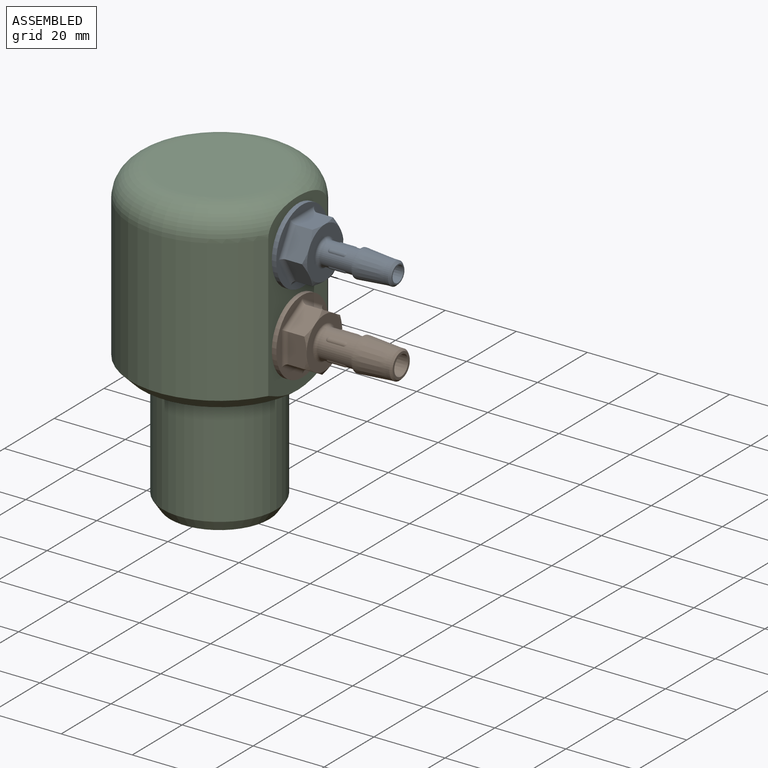
[diagram: assembled view]
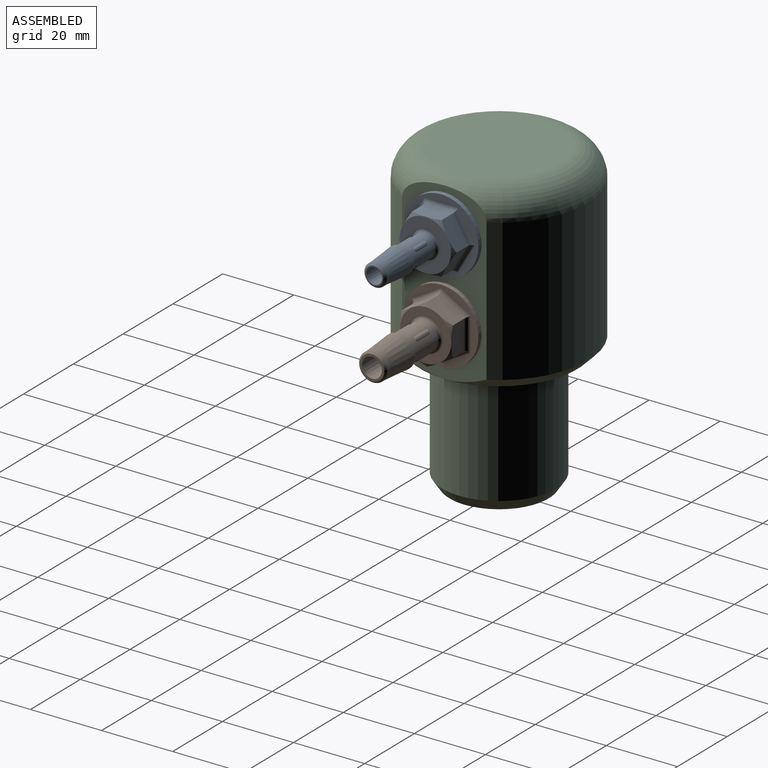
[diagram: assembled view, second angle]
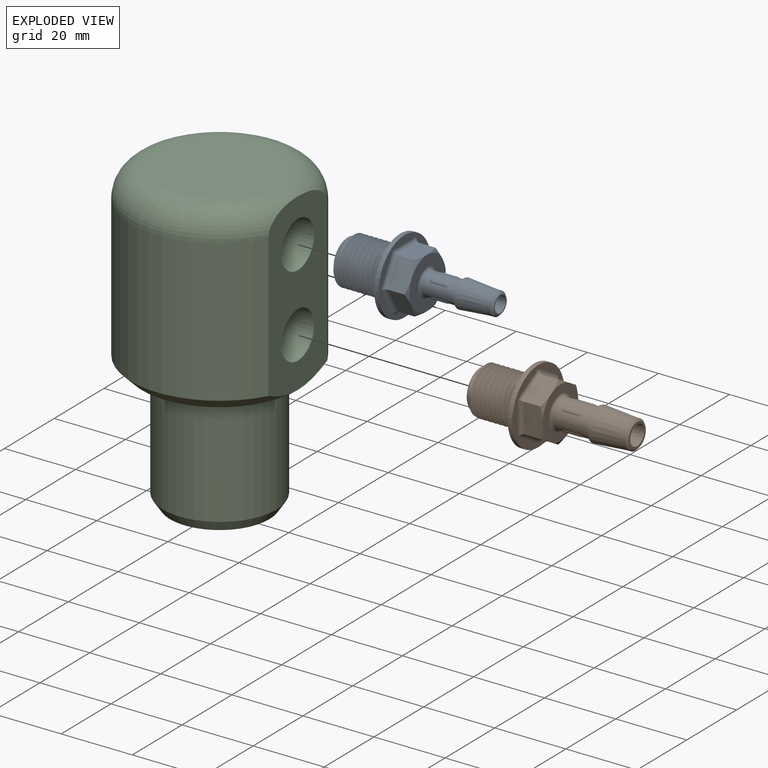
[diagram: exploded view]
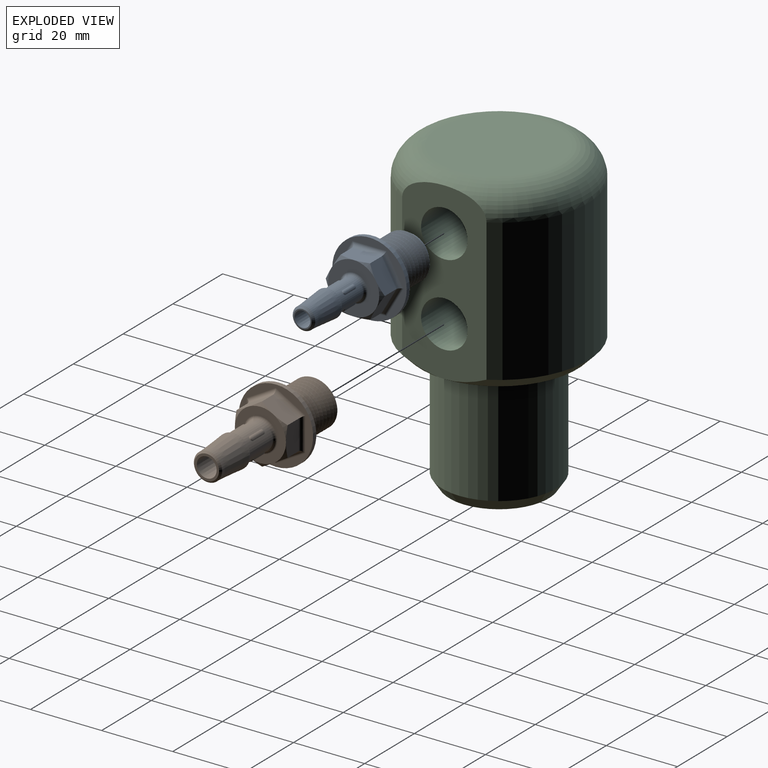
[diagram: exploded view, second angle]
ASSEMBLY  parts=3 mates=4
PART A: 49 faces, bbox 21x43.2x21 mm
  f0: cone r=4.8mm half-angle=1deg, axis (0,-1,0), area 586.4mm2, adj f24,f48
  f1: cone r=1.79mm half-angle=1deg, axis (0,1,0), area 307mm2, adj f44,f48
  f2: torus R=3.99mm, axis (0,-1,0), area 27.8mm2, adj f10,f25
  f3: sphere r=0.81mm, area 0.4mm2, adj f4,f10
  f4: cylinder r=0.81mm len=3.95mm, axis (0,-1,0), area 5.6mm2, adj f3,f5,f10
  f5: sphere r=0.81mm, area 0.5mm2, adj f4,f10
  f6: cone r=3.17mm half-angle=45deg, axis (0,-1,0), area 15.5mm2, adj f7,f44
  f7: cylinder r=3.17mm len=6.35mm, axis (0,-1,0), area 25.8mm2, adj f6,f8
  f8: cone r=3.85mm half-angle=4.7deg, axis (0,-1,0), area 179.9mm2, adj f7,f9
  f9: cylinder r=3.85mm len=7.7mm, axis (0,-1,0), area 9.2mm2, adj f8,f43
  f10: cylinder r=3.17mm len=9.35mm, axis (0,-1,0), area 163.8mm2, adj f2,f3,f4,f5,f15,f16,f17,f18
  f11: cone r=5.62mm half-angle=45deg, axis (0,1,0), area 12.4mm2, adj f14,f24
  f12: cone r=8.3mm half-angle=60deg, axis (0,-1,0), area 19.5mm2, adj f25,f26,f27,f28,f29,f30,f31
  f13: cylinder r=10.48mm len=20.96mm, axis (0,-1,0), area 83.6mm2, adj f35,f36
  f14: cylinder r=5.62mm len=14.73mm, axis (0,-1,0), area 59.5mm2, adj f11,f32,f33,f35,f45,f46,f47
  f15: sphere r=0.81mm, area 0.4mm2, adj f10,f16
  f16: cylinder r=0.81mm len=3.95mm, axis (0,-1,0), area 5.6mm2, adj f10,f15,f17
  f17: sphere r=0.81mm, area 0.5mm2, adj f10,f16
  f18: sphere r=0.81mm, area 0.4mm2, adj f10,f19
  f19: cylinder r=0.81mm len=3.95mm, axis (0,-1,0), area 5.6mm2, adj f10,f18,f20
  f20: sphere r=0.81mm, area 0.5mm2, adj f10,f19
  f21: sphere r=0.81mm, area 0.4mm2, adj f10,f22
  f22: cylinder r=0.81mm len=3.95mm, axis (0,-1,0), area 5.6mm2, adj f10,f21,f23
  f23: sphere r=0.81mm, area 0.5mm2, adj f10,f22
  f24: plane 10.74x10.74mm, normal (0,-1,0), area 8mm2, adj f0,f11
  f25: plane 14.37x14.37mm, normal (0,1,0), area 112.1mm2, adj f2,f12
  f26: plane 7.19x5.2mm, normal (0.5,0,0.87), area 41.4mm2, adj f12,f27,f31,f38
  f27: plane 7.19x5.2mm, normal (-0.5,0,0.87), area 41.3mm2, adj f12,f26,f28,f40
  f28: plane 8.3x5.2mm, normal (-1,0,0), area 41.3mm2, adj f12,f27,f29,f42
  f29: plane 7.19x5.2mm, normal (-0.5,0,-0.87), area 41.4mm2, adj f12,f28,f30,f41
  f30: plane 7.19x5.2mm, normal (0.5,0,-0.87), area 41.4mm2, adj f12,f29,f31,f39
  f31: plane 8.3x5.2mm, normal (1,0,0), area 41.3mm2, adj f12,f26,f30,f37
  f32: bspline ~15.34x13.33mm, area 476.1mm2, adj f14,f34,f35,f47
  f33: bspline ~14.64x13.33mm, area 453.8mm2, adj f14,f34,f35,f45
  f34: bspline ~14.22x13.33mm, area 36.8mm2, adj f32,f33,f35,f46
  f35: plane 20.96x20.96mm, normal (0,-1,0), area 226.3mm2, adj f13,f14,f32,f33,f34
  f36: plane 20.96x20.96mm, normal (0,1,0), area 104.4mm2, adj f13,f37,f38,f39,f40,f41,f42
  f37: cylinder r=1.14mm len=9.62mm, axis (0,0,1), area 16.1mm2, adj f31,f36,f38,f39
  f38: cylinder r=1.14mm len=8.9mm, axis (-0.87,0,0.5), area 16.1mm2, adj f26,f36,f37,f40
  f39: cylinder r=1.14mm len=8.9mm, axis (0.87,0,0.5), area 16.1mm2, adj f30,f36,f37,f41
  f40: cylinder r=1.14mm len=8.9mm, axis (-0.87,0,-0.5), area 16.1mm2, adj f27,f36,f38,f42
  f41: cylinder r=1.14mm len=8.9mm, axis (0.87,0,-0.5), area 16.1mm2, adj f29,f36,f39,f42
  f42: cylinder r=1.14mm len=9.62mm, axis (0,0,-1), area 16.1mm2, adj f28,f36,f40,f41
  f43: plane 7.7x7.7mm, normal (0,-1,0), area 14.9mm2, adj f9,f10
  f44: plane 5.13x5.13mm, normal (0,1,0), area 5.2mm2, adj f1,f6
  f45: bspline ~6.67x5.66mm, area 4.4mm2, adj f14,f33,f46
  f46: bspline ~6.67x5.66mm, area 0.5mm2, adj f14,f34,f45,f47
  f47: bspline ~6.67x5.66mm, area 4.4mm2, adj f14,f32,f46
  f48: plane 9.6x9.6mm, normal (0,-1,0), area 62.3mm2, adj f0,f1
PART B: 49 faces, bbox 21x44.2x21 mm
  f0: cone r=4.8mm half-angle=1deg, axis (0,-1,0), area 586.4mm2, adj f24,f48
  f1: cone r=2.35mm half-angle=1deg, axis (0,1,0), area 410.4mm2, adj f44,f48
  f2: torus R=4.78mm, axis (0,-1,0), area 34.2mm2, adj f10,f25
  f3: sphere r=0.91mm, area 0.5mm2, adj f4,f10
  f4: cylinder r=0.91mm len=4.51mm, axis (0,-1,0), area 6.7mm2, adj f3,f5,f10
  f5: sphere r=0.91mm, area 0.6mm2, adj f4,f10
  f6: cone r=3.98mm half-angle=45deg, axis (0,-1,0), area 16.8mm2, adj f7,f44
  f7: cylinder r=3.98mm len=7.95mm, axis (0,-1,0), area 27.3mm2, adj f6,f8
  f8: cone r=4.64mm half-angle=4.3deg, axis (0,-1,0), area 239.1mm2, adj f7,f9
  f9: cylinder r=4.64mm len=9.27mm, axis (0,-1,0), area 11.1mm2, adj f8,f43
  f10: cylinder r=3.97mm len=9.98mm, axis (0,-1,0), area 221.7mm2, adj f2,f3,f4,f5,f15,f16,f17,f18
  f11: cone r=5.62mm half-angle=45deg, axis (0,1,0), area 12.4mm2, adj f14,f24
  f12: cone r=8.3mm half-angle=60deg, axis (0,-1,0), area 19.5mm2, adj f25,f26,f27,f28,f29,f30,f31
  f13: cylinder r=10.48mm len=20.96mm, axis (0,-1,0), area 83.6mm2, adj f35,f36
  f14: cylinder r=5.62mm len=14.86mm, axis (0,-1,0), area 59.9mm2, adj f11,f32,f33,f35,f45,f46,f47
  f15: sphere r=0.91mm, area 0.5mm2, adj f10,f16
  f16: cylinder r=0.91mm len=4.51mm, axis (0,-1,0), area 6.7mm2, adj f10,f15,f17
  f17: sphere r=0.91mm, area 0.6mm2, adj f10,f16
  f18: sphere r=0.91mm, area 0.5mm2, adj f10,f19
  f19: cylinder r=0.91mm len=4.51mm, axis (0,-1,0), area 6.7mm2, adj f10,f18,f20
  f20: sphere r=0.91mm, area 0.6mm2, adj f10,f19
  f21: sphere r=0.91mm, area 0.5mm2, adj f10,f22
  f22: cylinder r=0.91mm len=4.51mm, axis (0,-1,0), area 6.7mm2, adj f10,f21,f23
  f23: sphere r=0.91mm, area 0.6mm2, adj f10,f22
  f24: plane 10.74x10.74mm, normal (0,-1,0), area 8mm2, adj f0,f11
  f25: plane 14.37x14.37mm, normal (0,1,0), area 90.2mm2, adj f2,f12
  f26: plane 7.19x5.08mm, normal (0.5,0,0.87), area 40.3mm2, adj f12,f27,f31,f38
  f27: plane 7.19x5.08mm, normal (-0.5,0,0.87), area 40.3mm2, adj f12,f26,f28,f40
  f28: plane 8.3x5.08mm, normal (-1,0,0), area 40.3mm2, adj f12,f27,f29,f42
  f29: plane 7.19x5.08mm, normal (-0.5,0,-0.87), area 40.3mm2, adj f12,f28,f30,f41
  f30: plane 7.19x5.08mm, normal (0.5,0,-0.87), area 40.3mm2, adj f12,f29,f31,f39
  f31: plane 8.3x5.08mm, normal (1,0,0), area 40.3mm2, adj f12,f26,f30,f37
  f32: bspline ~15.46x13.33mm, area 480.2mm2, adj f14,f34,f35,f47
  f33: bspline ~14.77x13.34mm, area 458mm2, adj f14,f34,f35,f45
  f34: bspline ~14.43x13.7mm, area 37.1mm2, adj f32,f33,f35,f46
  f35: plane 20.96x20.96mm, normal (0,-1,0), area 226.3mm2, adj f13,f14,f32,f33,f34
  f36: plane 20.96x20.96mm, normal (0,1,0), area 104.4mm2, adj f13,f37,f38,f39,f40,f41,f42
  f37: cylinder r=1.14mm len=9.62mm, axis (0,0,1), area 16.1mm2, adj f31,f36,f38,f39
  f38: cylinder r=1.14mm len=8.9mm, axis (-0.87,0,0.5), area 16.1mm2, adj f26,f36,f37,f40
  f39: cylinder r=1.14mm len=8.9mm, axis (0.87,0,0.5), area 16.1mm2, adj f30,f36,f37,f41
  f40: cylinder r=1.14mm len=8.9mm, axis (-0.87,0,-0.5), area 16.1mm2, adj f27,f36,f38,f42
  f41: cylinder r=1.14mm len=8.9mm, axis (0.87,0,-0.5), area 16.1mm2, adj f29,f36,f39,f42
  f42: cylinder r=1.14mm len=9.62mm, axis (0,0,-1), area 16.1mm2, adj f28,f36,f40,f41
  f43: plane 9.27x9.27mm, normal (0,-1,0), area 18mm2, adj f9,f10
  f44: plane 6.93x6.93mm, normal (0,1,0), area 13.3mm2, adj f1,f6
  f45: bspline ~6.67x5.66mm, area 4.4mm2, adj f14,f33,f46
  f46: bspline ~6.67x5.66mm, area 0.5mm2, adj f14,f34,f45,f47
  f47: bspline ~6.67x5.66mm, area 4.4mm2, adj f14,f32,f46
  f48: plane 9.6x9.6mm, normal (0,-1,0), area 55.1mm2, adj f0,f1
PART C: 16 faces, bbox 54.1x54.1x86 mm
  f0: cylinder r=9mm len=71.59mm, axis (0,0,1), area 3792.5mm2, adj f1,f9,f10,f11
  f1: cone r=9mm half-angle=59deg, axis (0,0,-1), area 233.2mm2, adj f0,f8,f9
  f2: plane 34x34mm, normal (0,0,1), area 907.9mm2, adj f15
  f3: cylinder r=25mm len=50mm, axis (0,0,1), area 5293.3mm2, adj f7,f12,f15
  f4: plane 44x44mm, normal (0,0,-1), area 612.6mm2, adj f12,f13
  f5: cylinder r=16mm len=32mm, axis (0,0,1), area 3116.5mm2, adj f13,f14
  f6: plane 28x28mm, normal (0,0,-1), area 163.4mm2, adj f11,f14
  f7: plane 49.25x23.75mm, normal (1,0,0), area 846.3mm2, adj f3,f9,f10,f12,f15
  f8: cone r=0mm half-angle=59deg, axis (1,0,0), area 5.9mm2, adj f1,f9
  f9: cylinder r=6.55mm len=18.23mm, axis (1,0,0), area 652.7mm2, adj f0,f1,f7,f8
  f10: cylinder r=6.55mm len=15.83mm, axis (1,0,0), area 592.3mm2, adj f0,f7
  f11: cone r=12mm half-angle=45deg, axis (0,0,-1), area 279.9mm2, adj f0,f6
  f12: cone r=25mm half-angle=45deg, axis (0,0,1), area 558.4mm2, adj f3,f4,f7
  f13: torus R=17mm, axis (0,0,-1), area 161.5mm2, adj f4,f5
  f14: cone r=16mm half-angle=33.7deg, axis (0,0,1), area 339.8mm2, adj f5,f6
  f15: torus R=17mm, axis (0,0,1), area 1608.8mm2, adj f2,f3,f7
PLACE A rot(axis=(0.58,0.58,-0.58),120deg) t=(7.73,0.15,37.68)mm
PLACE B rot(axis=(0.71,0.71,0),180deg) t=(7.61,0.15,14.68)mm
PLACE C t=(0.47,0.15,0.68)mm fixed
MATE cylindrical A.f0 <-> C.f8  axis (-1,0,0) through (26.28,0.15,37.68)mm
MATE planar C.f7 <-> B.f35  axis (1,0,0) through (22.47,0.15,24.9)mm
MATE cylindrical B.f12 <-> C.f10  axis (-1,0,0) through (26.15,0.15,14.68)mm
MATE planar C.f7 <-> A.f35  axis (1,0,0) through (22.47,0.15,24.9)mm
